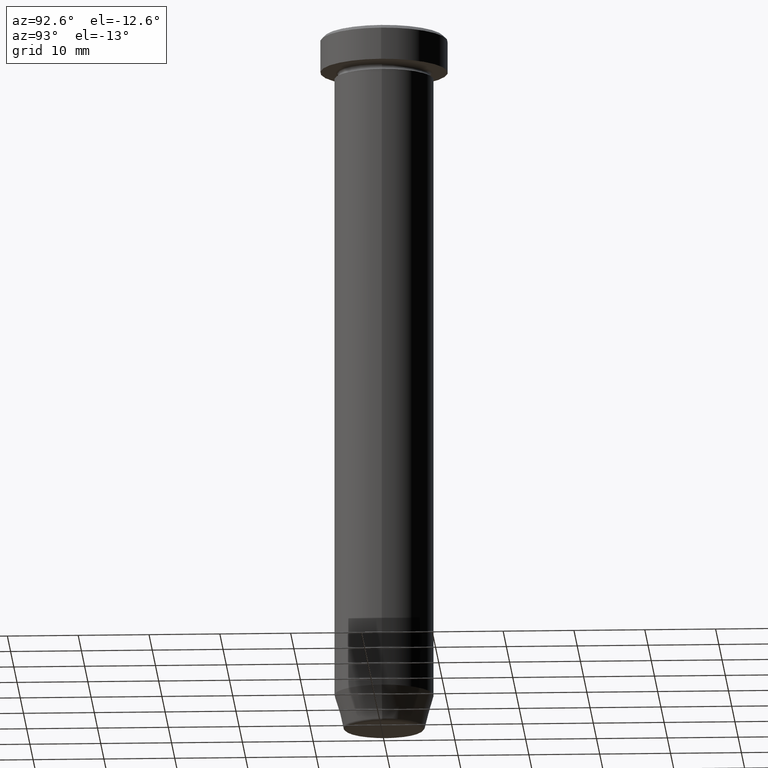
[diagram: clean part render]
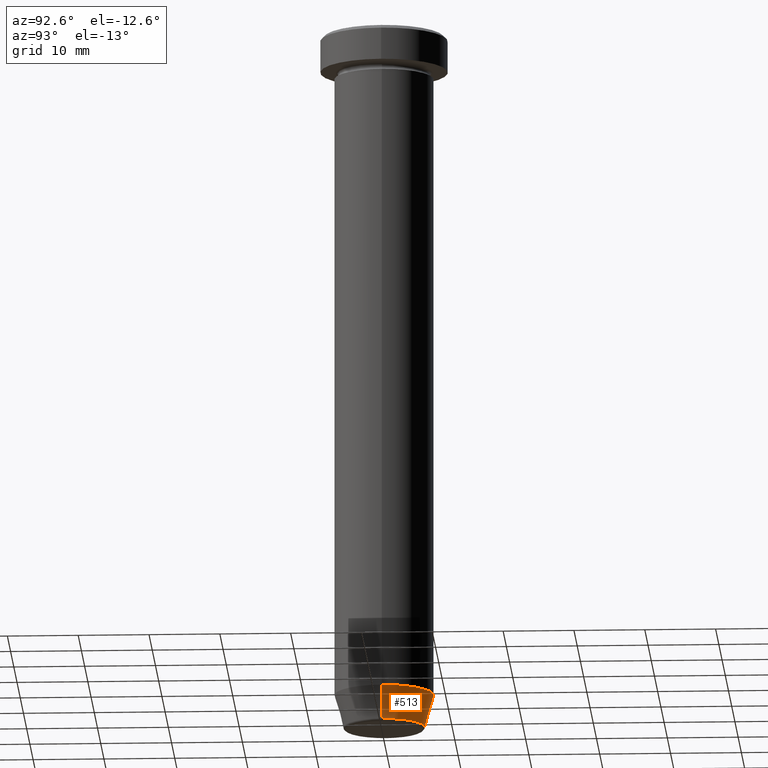
[diagram: same view with one face highlighted and labeled with its STEP entity id]
A machine part, auxiliary view. The second image highlights one B-rep face of the part: STEP entity #513.
In plain terms, the highlighted conical surface has half-angle 15 deg.
Its self-contained STEP definition (entity closure, byte-faithful):
#23 = DIRECTION ( 'NONE',  ( -1.000000000000000000, 0.000000000000000000, 0.000000000000000000 ) ) ;
#34 = CIRCLE ( 'NONE', #375, 7.000000000000000000 ) ;
#39 = ORIENTED_EDGE ( 'NONE', *, *, #309, .F. ) ;
#48 = DIRECTION ( 'NONE',  ( -0.2588190451025210170, 3.169619151431768639E-17, 0.9659258262890680902 ) ) ;
#53 = VECTOR ( 'NONE', #48, 1000.000000000000114 ) ;
#86 = FACE_OUTER_BOUND ( 'NONE', #226, .T. ) ;
#88 = DIRECTION ( 'NONE',  ( 0.2588190451025210170, 0.000000000000000000, 0.9659258262890680902 ) ) ;
#92 = CARTESIAN_POINT ( 'NONE',  ( 5.759553456999434218, 0.000000000000000000, -99.62940952255127058 ) ) ;
#94 = CIRCLE ( 'NONE', #132, 5.759553456999434218 ) ;
#105 = DIRECTION ( 'NONE',  ( 1.000000000000000000, 0.000000000000000000, 0.000000000000000000 ) ) ;
#132 = AXIS2_PLACEMENT_3D ( 'NONE', #449, #163, #23 ) ;
#135 = CONICAL_SURFACE ( 'NONE', #367, 5.660254037844383745, 0.2617993877991497409 ) ;
#149 = CARTESIAN_POINT ( 'NONE',  ( -5.660254037844383745, 6.931811989807006322E-16, -100.0000000000000000 ) ) ;
#160 = CARTESIAN_POINT ( 'NONE',  ( 7.000000000000000000, 0.000000000000000000, -95.00000000000000000 ) ) ;
#163 = DIRECTION ( 'NONE',  ( -0.000000000000000000, -0.000000000000000000, 1.000000000000000000 ) ) ;
#171 = LINE ( 'NONE', #321, #510 ) ;
#178 = ORIENTED_EDGE ( 'NONE', *, *, #414, .T. ) ;
#184 = VERTEX_POINT ( 'NONE', #92 ) ;
#209 = CARTESIAN_POINT ( 'NONE',  ( -5.759553456999434218, 7.812973149831952759E-16, -99.62940952255127058 ) ) ;
#226 = EDGE_LOOP ( 'NONE', ( #178, #228, #39, #358 ) ) ;
#228 = ORIENTED_EDGE ( 'NONE', *, *, #558, .T. ) ;
#229 = EDGE_CURVE ( 'NONE', #184, #413, #171, .T. ) ;
#258 = DIRECTION ( 'NONE',  ( 1.000000000000000000, 0.000000000000000000, 0.000000000000000000 ) ) ;
#283 = CARTESIAN_POINT ( 'NONE',  ( 0.000000000000000000, 0.000000000000000000, -100.0000000000000000 ) ) ;
#309 = EDGE_CURVE ( 'NONE', #413, #442, #34, .T. ) ;
#321 = CARTESIAN_POINT ( 'NONE',  ( 5.660254037844383745, 0.000000000000000000, -100.0000000000000000 ) ) ;
#358 = ORIENTED_EDGE ( 'NONE', *, *, #229, .F. ) ;
#367 = AXIS2_PLACEMENT_3D ( 'NONE', #283, #382, #105 ) ;
#375 = AXIS2_PLACEMENT_3D ( 'NONE', #585, #593, #258 ) ;
#382 = DIRECTION ( 'NONE',  ( -0.000000000000000000, -0.000000000000000000, 1.000000000000000000 ) ) ;
#413 = VERTEX_POINT ( 'NONE', #160 ) ;
#414 = EDGE_CURVE ( 'NONE', #184, #429, #94, .T. ) ;
#429 = VERTEX_POINT ( 'NONE', #209 ) ;
#442 = VERTEX_POINT ( 'NONE', #567 ) ;
#449 = CARTESIAN_POINT ( 'NONE',  ( 0.000000000000000000, 0.000000000000000000, -99.62940952255127058 ) ) ;
#510 = VECTOR ( 'NONE', #88, 1000.000000000000114 ) ;
#513 = ADVANCED_FACE ( 'NONE', ( #86 ), #135, .T. ) ;
#555 = LINE ( 'NONE', #149, #53 ) ;
#558 = EDGE_CURVE ( 'NONE', #429, #442, #555, .T. ) ;
#567 = CARTESIAN_POINT ( 'NONE',  ( -7.000000000000000000, 8.572527594031473190E-16, -95.00000000000000000 ) ) ;
#585 = CARTESIAN_POINT ( 'NONE',  ( 0.000000000000000000, 0.000000000000000000, -95.00000000000000000 ) ) ;
#593 = DIRECTION ( 'NONE',  ( -0.000000000000000000, -0.000000000000000000, 1.000000000000000000 ) ) ;